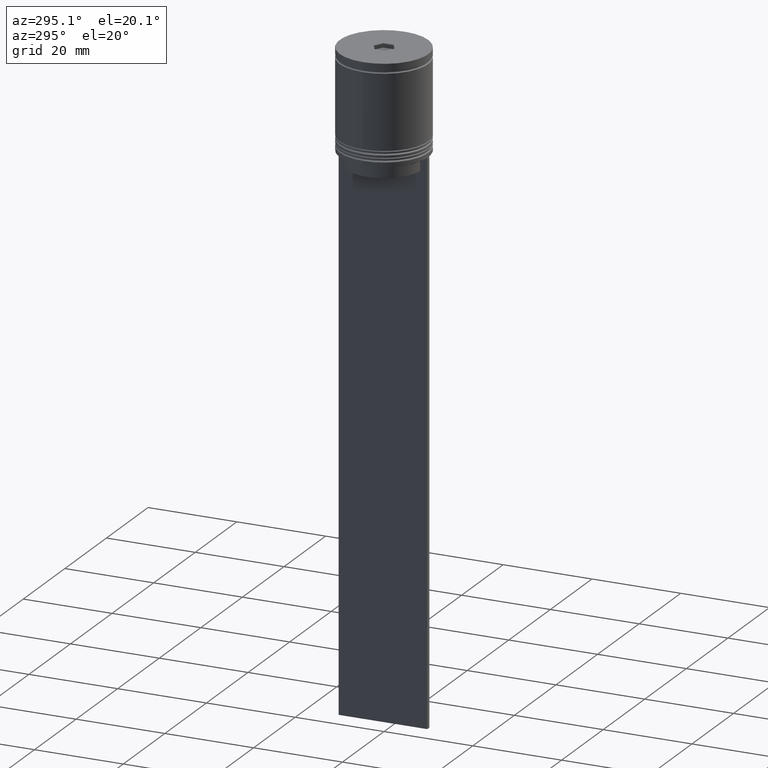
[diagram: clean part render]
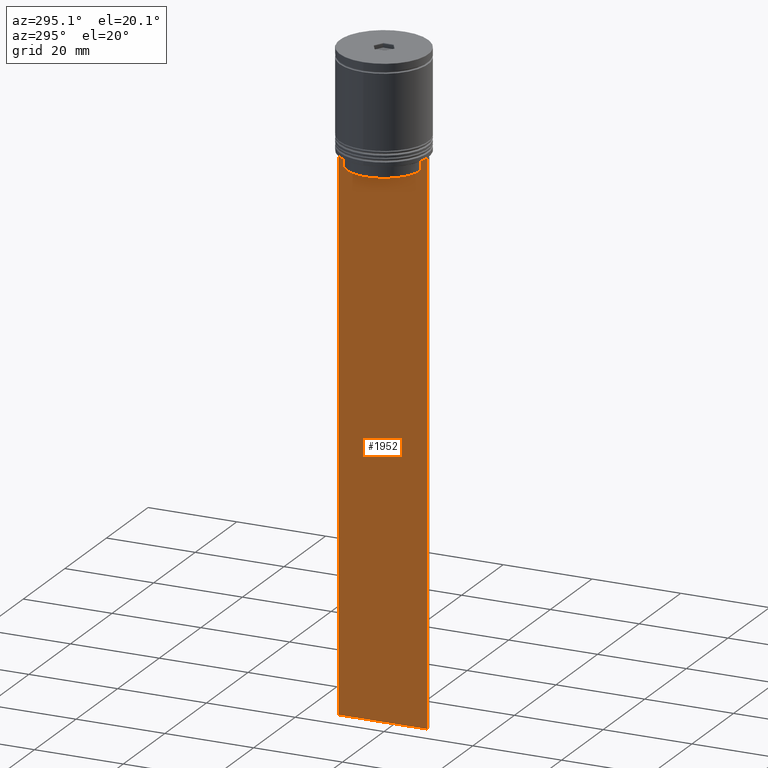
[diagram: same view with one face highlighted and labeled with its STEP entity id]
A machine part, auxiliary view. The second image highlights one B-rep face of the part: STEP entity #1952.
In plain terms, the highlighted planar face has unit normal (-1, 0, 0).
Its self-contained STEP definition (entity closure, byte-faithful):
#51 = EDGE_CURVE ( 'NONE', #259, #72, #160, .T. ) ;
#65 = VERTEX_POINT ( 'NONE', #2083 ) ;
#72 = VERTEX_POINT ( 'NONE', #150 ) ;
#75 = CARTESIAN_POINT ( 'NONE',  ( -0.5000000000000000000, -8.385105843100610912, -23.00000000000000000 ) ) ;
#82 = DIRECTION ( 'NONE',  ( 0.000000000000000000, -1.000000000000000000, 0.000000000000000000 ) ) ;
#88 = FACE_OUTER_BOUND ( 'NONE', #1696, .T. ) ;
#104 = LINE ( 'NONE', #467, #1294 ) ;
#107 = VECTOR ( 'NONE', #622, 1000.000000000000000 ) ;
#137 = LINE ( 'NONE', #474, #1876 ) ;
#150 = CARTESIAN_POINT ( 'NONE',  ( -0.5000000000000000000, 9.887365675446622149, -22.50000000000000000 ) ) ;
#158 = VERTEX_POINT ( 'NONE', #972 ) ;
#160 = LINE ( 'NONE', #1114, #330 ) ;
#233 = ORIENTED_EDGE ( 'NONE', *, *, #1983, .F. ) ;
#259 = VERTEX_POINT ( 'NONE', #1366 ) ;
#330 = VECTOR ( 'NONE', #1423, 1000.000000000000000 ) ;
#332 = CARTESIAN_POINT ( 'NONE',  ( -0.5000000000000000000, -8.885943956609226646, -22.50000000000000000 ) ) ;
#356 = ORIENTED_EDGE ( 'NONE', *, *, #516, .F. ) ;
#371 = DIRECTION ( 'NONE',  ( 0.000000000000000000, -1.000000000000000000, 0.000000000000000000 ) ) ;
#375 = VECTOR ( 'NONE', #82, 1000.000000000000000 ) ;
#416 = DIRECTION ( 'NONE',  ( 0.000000000000000000, 0.000000000000000000, 1.000000000000000000 ) ) ;
#422 = CARTESIAN_POINT ( 'NONE',  ( -0.5000000000000000000, -10.00000000000000178, -22.50000000000000000 ) ) ;
#445 = ORIENTED_EDGE ( 'NONE', *, *, #788, .F. ) ;
#467 = CARTESIAN_POINT ( 'NONE',  ( -0.5000000000000000000, 8.400000000000000355, -25.50000000000000000 ) ) ;
#474 = CARTESIAN_POINT ( 'NONE',  ( -0.5000000000000000000, 8.385105843100610912, 0.000000000000000000 ) ) ;
#478 = EDGE_CURVE ( 'NONE', #1660, #158, #137, .T. ) ;
#516 = EDGE_CURVE ( 'NONE', #1757, #704, #1444, .T. ) ;
#533 = CARTESIAN_POINT ( 'NONE',  ( -0.5000000000000000000, -10.00000000000000178, -22.50000000000000000 ) ) ;
#576 = ORIENTED_EDGE ( 'NONE', *, *, #1986, .F. ) ;
#578 = LINE ( 'NONE', #1078, #1089 ) ;
#622 = DIRECTION ( 'NONE',  ( 0.000000000000000000, 0.000000000000000000, -1.000000000000000000 ) ) ;
#623 = CARTESIAN_POINT ( 'NONE',  ( -0.5000000000000000000, 9.999999999999998224, -146.5000000000000000 ) ) ;
#635 = VERTEX_POINT ( 'NONE', #332 ) ;
#646 = VECTOR ( 'NONE', #1841, 1000.000000000000000 ) ;
#686 = ORIENTED_EDGE ( 'NONE', *, *, #1810, .F. ) ;
#687 = CARTESIAN_POINT ( 'NONE',  ( -0.5000000000000000000, -10.00000000000000178, -146.5000000000000000 ) ) ;
#704 = VERTEX_POINT ( 'NONE', #687 ) ;
#718 = PLANE ( 'NONE',  #1504 ) ;
#752 = CARTESIAN_POINT ( 'NONE',  ( -0.5000000000000000000, -10.00000000000000178, -22.50000000000000000 ) ) ;
#770 = B_SPLINE_CURVE_WITH_KNOTS ( 'NONE', 3,
 ( #1944, #1926, #1290, #2050 ),
 .UNSPECIFIED., .F., .F.,
 ( 4, 4 ),
 ( 0.01511546479386905242, 0.01582316445439076874 ),
 .UNSPECIFIED. ) ;
#788 = EDGE_CURVE ( 'NONE', #930, #1161, #578, .T. ) ;
#844 = EDGE_CURVE ( 'NONE', #72, #65, #1875, .T. ) ;
#855 = CARTESIAN_POINT ( 'NONE',  ( -0.5000000000000000000, -8.719005764482783860, -22.66667454151159689 ) ) ;
#862 = EDGE_CURVE ( 'NONE', #158, #930, #104, .T. ) ;
#886 = ORIENTED_EDGE ( 'NONE', *, *, #1363, .T. ) ;
#930 = VERTEX_POINT ( 'NONE', #1776 ) ;
#942 = DIRECTION ( 'NONE',  ( 0.000000000000000000, -1.000000000000000000, 0.000000000000000000 ) ) ;
#961 = ORIENTED_EDGE ( 'NONE', *, *, #862, .F. ) ;
#972 = CARTESIAN_POINT ( 'NONE',  ( -0.5000000000000000000, 8.385105843100610912, -25.50000000000000000 ) ) ;
#985 = DIRECTION ( 'NONE',  ( 0.000000000000000000, 0.000000000000000000, -1.000000000000000000 ) ) ;
#990 = EDGE_CURVE ( 'NONE', #65, #1660, #770, .T. ) ;
#1028 = CARTESIAN_POINT ( 'NONE',  ( -0.5000000000000000000, -8.885943956609226646, -22.50000000000000000 ) ) ;
#1041 = CARTESIAN_POINT ( 'NONE',  ( -0.5000000000000000000, -8.552060194457768105, -22.83334167772666845 ) ) ;
#1055 = DIRECTION ( 'NONE',  ( 0.000000000000000000, -1.000000000000000000, 0.000000000000000000 ) ) ;
#1067 = ORIENTED_EDGE ( 'NONE', *, *, #1303, .F. ) ;
#1069 = B_SPLINE_CURVE_WITH_KNOTS ( 'NONE', 3,
 ( #1679, #1041, #855, #1028 ),
 .UNSPECIFIED., .F., .F.,
 ( 4, 4 ),
 ( 0.03898465126933125385, 0.03969388910599652709 ),
 .UNSPECIFIED. ) ;
#1078 = CARTESIAN_POINT ( 'NONE',  ( -0.5000000000000000000, -8.385105843100610912, 0.000000000000000000 ) ) ;
#1083 = DIRECTION ( 'NONE',  ( 0.000000000000000000, 0.000000000000000000, -1.000000000000000000 ) ) ;
#1089 = VECTOR ( 'NONE', #1391, 1000.000000000000000 ) ;
#1114 = CARTESIAN_POINT ( 'NONE',  ( -0.5000000000000000000, -10.00000000000000178, -22.50000000000000000 ) ) ;
#1161 = VERTEX_POINT ( 'NONE', #75 ) ;
#1182 = LINE ( 'NONE', #1307, #646 ) ;
#1183 = LINE ( 'NONE', #533, #1884 ) ;
#1290 = CARTESIAN_POINT ( 'NONE',  ( -0.5000000000000000000, 8.552060201981374732, -22.83334167021640582 ) ) ;
#1294 = VECTOR ( 'NONE', #942, 1000.000000000000000 ) ;
#1303 = EDGE_CURVE ( 'NONE', #635, #1520, #1183, .T. ) ;
#1307 = CARTESIAN_POINT ( 'NONE',  ( -0.5000000000000000000, -10.00000000000000178, -146.5000000000000000 ) ) ;
#1356 = CARTESIAN_POINT ( 'NONE',  ( -0.5000000000000000000, 9.999999999999998224, -2.475015605499213844 ) ) ;
#1363 = EDGE_CURVE ( 'NONE', #259, #1473, #1495, .T. ) ;
#1366 = CARTESIAN_POINT ( 'NONE',  ( -0.5000000000000000000, 9.999999999999994671, -22.50000000000000000 ) ) ;
#1391 = DIRECTION ( 'NONE',  ( -0.000000000000000000, -0.000000000000000000, 1.000000000000000000 ) ) ;
#1406 = CARTESIAN_POINT ( 'NONE',  ( -0.5000000000000000000, 8.385105843100610912, -23.00000000000000000 ) ) ;
#1423 = DIRECTION ( 'NONE',  ( 0.000000000000000000, -1.000000000000000000, 0.000000000000000000 ) ) ;
#1444 = LINE ( 'NONE', #2073, #107 ) ;
#1445 = CARTESIAN_POINT ( 'NONE',  ( -0.5000000000000000000, -9.887365675446622149, -22.50000000000000000 ) ) ;
#1473 = VERTEX_POINT ( 'NONE', #623 ) ;
#1495 = LINE ( 'NONE', #1356, #2066 ) ;
#1504 = AXIS2_PLACEMENT_3D ( 'NONE', #1548, #1512, #416 ) ;
#1512 = DIRECTION ( 'NONE',  ( -1.000000000000000000, 0.000000000000000000, 0.000000000000000000 ) ) ;
#1520 = VERTEX_POINT ( 'NONE', #1445 ) ;
#1541 = LINE ( 'NONE', #1689, #375 ) ;
#1548 = CARTESIAN_POINT ( 'NONE',  ( -0.5000000000000000000, -10.00000000000000178, -2.475015605499213844 ) ) ;
#1607 = VECTOR ( 'NONE', #1055, 1000.000000000000000 ) ;
#1660 = VERTEX_POINT ( 'NONE', #1406 ) ;
#1679 = CARTESIAN_POINT ( 'NONE',  ( -0.5000000000000000000, -8.385105843100610912, -23.00000000000000000 ) ) ;
#1689 = CARTESIAN_POINT ( 'NONE',  ( -0.5000000000000000000, -10.00000000000000178, -22.50000000000000000 ) ) ;
#1696 = EDGE_LOOP ( 'NONE', ( #1907, #1698, #2081, #886, #686, #356, #576, #1067, #233, #445, #961, #1820 ) ) ;
#1698 = ORIENTED_EDGE ( 'NONE', *, *, #844, .F. ) ;
#1757 = VERTEX_POINT ( 'NONE', #752 ) ;
#1776 = CARTESIAN_POINT ( 'NONE',  ( -0.5000000000000000000, -8.385105843100610912, -25.50000000000000000 ) ) ;
#1810 = EDGE_CURVE ( 'NONE', #704, #1473, #1182, .T. ) ;
#1820 = ORIENTED_EDGE ( 'NONE', *, *, #478, .F. ) ;
#1841 = DIRECTION ( 'NONE',  ( 0.000000000000000000, 1.000000000000000000, 0.000000000000000000 ) ) ;
#1875 = LINE ( 'NONE', #422, #1607 ) ;
#1876 = VECTOR ( 'NONE', #1083, 1000.000000000000000 ) ;
#1884 = VECTOR ( 'NONE', #371, 1000.000000000000000 ) ;
#1907 = ORIENTED_EDGE ( 'NONE', *, *, #990, .F. ) ;
#1926 = CARTESIAN_POINT ( 'NONE',  ( -0.5000000000000000000, 8.719005771582342135, -22.66667453442325098 ) ) ;
#1944 = CARTESIAN_POINT ( 'NONE',  ( -0.5000000000000000000, 8.885943956609226646, -22.50000000000000000 ) ) ;
#1952 = ADVANCED_FACE ( 'NONE', ( #88 ), #718, .T. ) ;
#1983 = EDGE_CURVE ( 'NONE', #1161, #635, #1069, .T. ) ;
#1986 = EDGE_CURVE ( 'NONE', #1520, #1757, #1541, .T. ) ;
#2050 = CARTESIAN_POINT ( 'NONE',  ( -0.5000000000000000000, 8.385105843100610912, -23.00000000000000000 ) ) ;
#2066 = VECTOR ( 'NONE', #985, 1000.000000000000000 ) ;
#2073 = CARTESIAN_POINT ( 'NONE',  ( -0.5000000000000000000, -10.00000000000000178, -2.475015605499213844 ) ) ;
#2081 = ORIENTED_EDGE ( 'NONE', *, *, #51, .F. ) ;
#2083 = CARTESIAN_POINT ( 'NONE',  ( -0.5000000000000000000, 8.885943956609226646, -22.50000000000000000 ) ) ;